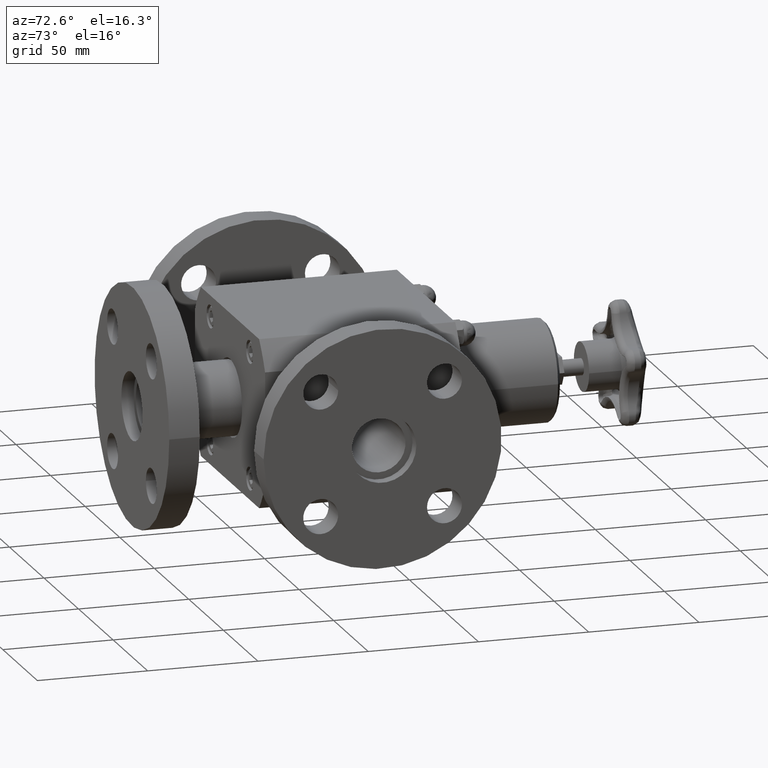
[diagram: clean part render]
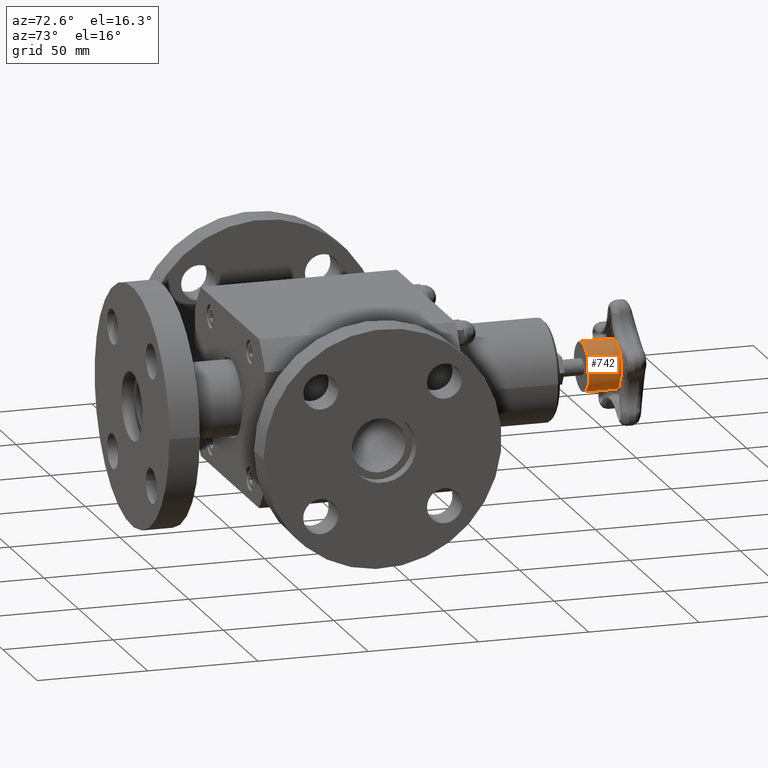
[diagram: same view with one face highlighted and labeled with its STEP entity id]
A machine part, auxiliary view. The second image highlights one B-rep face of the part: STEP entity #742.
In plain terms, the highlighted cylindrical surface (bore or boss wall) has radius 11.049 mm, axis along (0, -1, 0).
Its self-contained STEP definition (entity closure, byte-faithful):
#217=CARTESIAN_POINT('',(0.434999999999995,6.275500000000000,-4.214597E-016));
#218=VERTEX_POINT('',#217);
#219=CARTESIAN_POINT('',(-4.937905E-015,6.275499999999999,-4.214597E-016));
#220=DIRECTION('',(0.0,-1.0,0.0));
#221=DIRECTION('',(1.0,0.0,0.0));
#222=AXIS2_PLACEMENT_3D('',#219,#220,#221);
#223=CIRCLE('',#222,0.435000000000000);
#224=EDGE_CURVE('',#218,#218,#223,.T.);
#427=CARTESIAN_POINT('',(0.434999999999995,6.855499999999999,-7.924549E-016));
#428=VERTEX_POINT('',#427);
#429=CARTESIAN_POINT('',(-5.415435E-015,6.855499999999999,-4.214597E-016));
#430=DIRECTION('',(0.0,1.0,0.0));
#431=DIRECTION('',(-1.0,0.0,0.0));
#432=AXIS2_PLACEMENT_3D('',#429,#430,#431);
#433=CIRCLE('',#432,0.435000000000000);
#434=EDGE_CURVE('',#428,#428,#433,.T.);
#731=CARTESIAN_POINT('',(-5.143737E-015,6.525499999999999,-4.214597E-016));
#732=DIRECTION('',(8.233276E-016,-1.0,6.162976E-033));
#733=DIRECTION('',(1.0,0.0,0.0));
#734=AXIS2_PLACEMENT_3D('',#731,#732,#733);
#735=CYLINDRICAL_SURFACE('',#734,0.435000000000000);
#736=ORIENTED_EDGE('',*,*,#224,.F.);
#737=EDGE_LOOP('',(#736));
#738=FACE_OUTER_BOUND('',#737,.T.);
#739=ORIENTED_EDGE('',*,*,#434,.F.);
#740=EDGE_LOOP('',(#739));
#741=FACE_BOUND('',#740,.T.);
#742=ADVANCED_FACE('',(#738,#741),#735,.T.);